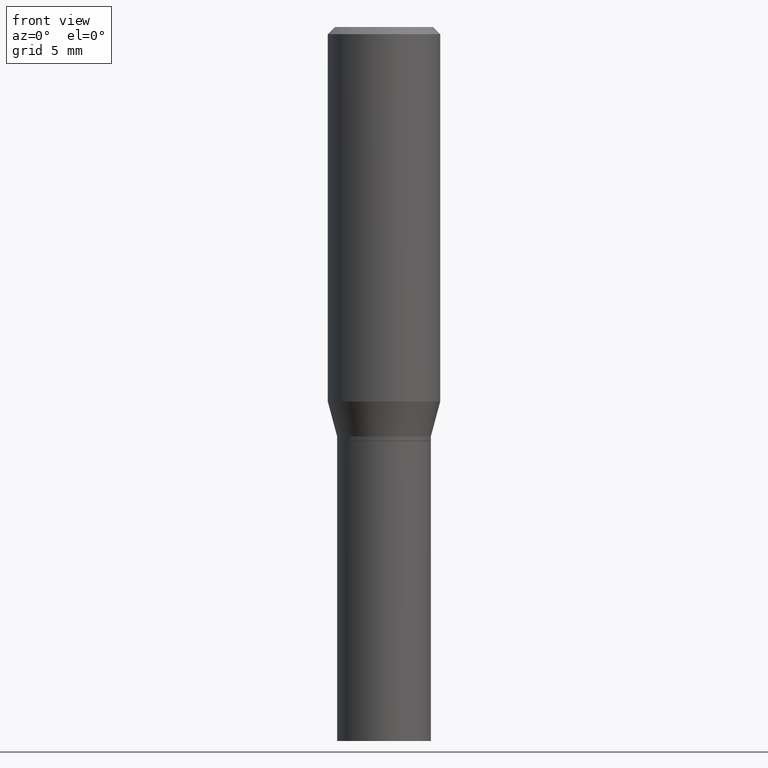
[diagram: clean part render]
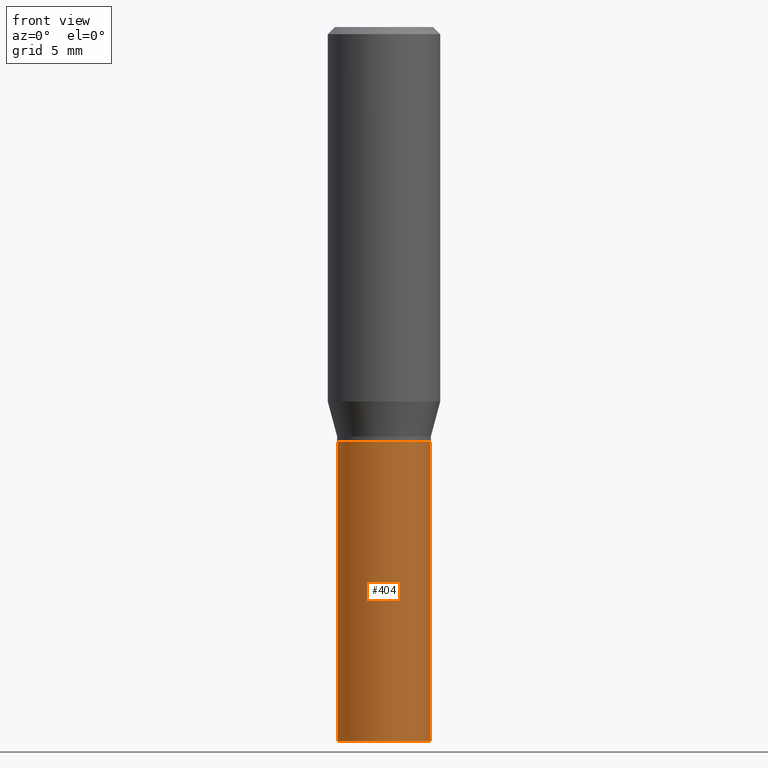
[diagram: same view with one face highlighted and labeled with its STEP entity id]
A machine part, front view. The second image highlights one B-rep face of the part: STEP entity #404.
In plain terms, the highlighted cylindrical surface (partial cylindrical patch) has radius 2.5006 mm, axis along (-0, 0, 1).
Its self-contained STEP definition (entity closure, byte-faithful):
#2 = VERTEX_POINT ( 'NONE', #284 ) ;
#11 = DIRECTION ( 'NONE',  ( -2.445468806185136597E-29, 3.491481338843145583E-15, 1.000000000000000000 ) ) ;
#14 = CARTESIAN_POINT ( 'NONE',  ( -0.09844999999999999585, -3.438050637240251581E-15, -1.500000000000000222 ) ) ;
#24 = VECTOR ( 'NONE', #139, 39.37007874015748143 ) ;
#27 = CYLINDRICAL_SURFACE ( 'NONE', #416, 0.09844999999999999585 ) ;
#53 = LINE ( 'NONE', #202, #359 ) ;
#55 = VERTEX_POINT ( 'NONE', #14 ) ;
#65 = FACE_OUTER_BOUND ( 'NONE', #203, .T. ) ;
#75 = EDGE_CURVE ( 'NONE', #2, #137, #336, .T. ) ;
#77 = DIRECTION ( 'NONE',  ( 1.000000000000000000, -6.982962677686266711E-15, 4.876176775795936353E-29 ) ) ;
#80 = CARTESIAN_POINT ( 'NONE',  ( 2.127802408261687534E-29, -3.037937912927421601E-15, -0.8701000000000000956 ) ) ;
#91 = ORIENTED_EDGE ( 'NONE', *, *, #164, .T. ) ;
#98 = LINE ( 'NONE', #176, #24 ) ;
#107 = ORIENTED_EDGE ( 'NONE', *, *, #388, .T. ) ;
#137 = VERTEX_POINT ( 'NONE', #350 ) ;
#139 = DIRECTION ( 'NONE',  ( -2.445468806185136877E-29, 3.491481338843145188E-15, 1.000000000000000000 ) ) ;
#154 = CIRCLE ( 'NONE', #442, 0.09844999999999999585 ) ;
#157 = DIRECTION ( 'NONE',  ( 1.000000000000000000, -6.982962677686265922E-15, 0.000000000000000000 ) ) ;
#164 = EDGE_CURVE ( 'NONE', #259, #137, #53, .T. ) ;
#176 = CARTESIAN_POINT ( 'NONE',  ( -0.09844999999999999585, 6.995293233558186035E-16, -4.842691596355954042E-30 ) ) ;
#202 = CARTESIAN_POINT ( 'NONE',  ( 0.09844999999999999585, -6.874726756182129545E-16, 4.800596035771099214E-30 ) ) ;
#203 = EDGE_LOOP ( 'NONE', ( #413, #107, #91, #323 ) ) ;
#226 = CARTESIAN_POINT ( 'NONE',  ( 0.000000000000000000, 0.000000000000000000, 0.000000000000000000 ) ) ;
#259 = VERTEX_POINT ( 'NONE', #385 ) ;
#263 = DIRECTION ( 'NONE',  ( -2.445468806185136597E-29, 3.491481338843145583E-15, 1.000000000000000000 ) ) ;
#284 = CARTESIAN_POINT ( 'NONE',  ( -0.09844999999999999585, -3.438050637240251581E-15, -0.8701000000000000956 ) ) ;
#299 = DIRECTION ( 'NONE',  ( -2.445468806185136597E-29, 3.491481338843145583E-15, 1.000000000000000000 ) ) ;
#314 = EDGE_CURVE ( 'NONE', #55, #2, #98, .T. ) ;
#323 = ORIENTED_EDGE ( 'NONE', *, *, #75, .F. ) ;
#329 = CARTESIAN_POINT ( 'NONE',  ( 3.668203209277704895E-29, -5.237222008264718177E-15, -1.500000000000000222 ) ) ;
#336 = CIRCLE ( 'NONE', #423, 0.09844999999999999585 ) ;
#349 = DIRECTION ( 'NONE',  ( -2.445468806185136877E-29, 3.491481338843145188E-15, 1.000000000000000000 ) ) ;
#350 = CARTESIAN_POINT ( 'NONE',  ( 0.09844999999999999585, -3.725410588545634555E-15, -0.8701000000000000956 ) ) ;
#355 = DIRECTION ( 'NONE',  ( 1.000000000000000000, -6.982962677686265922E-15, 0.000000000000000000 ) ) ;
#359 = VECTOR ( 'NONE', #349, 39.37007874015748143 ) ;
#385 = CARTESIAN_POINT ( 'NONE',  ( 0.09844999999999999585, -5.924694683882931526E-15, -1.500000000000000222 ) ) ;
#388 = EDGE_CURVE ( 'NONE', #55, #259, #154, .T. ) ;
#404 = ADVANCED_FACE ( 'NONE', ( #65 ), #27, .T. ) ;
#413 = ORIENTED_EDGE ( 'NONE', *, *, #314, .F. ) ;
#416 = AXIS2_PLACEMENT_3D ( 'NONE', #226, #263, #77 ) ;
#423 = AXIS2_PLACEMENT_3D ( 'NONE', #80, #11, #157 ) ;
#442 = AXIS2_PLACEMENT_3D ( 'NONE', #329, #299, #355 ) ;